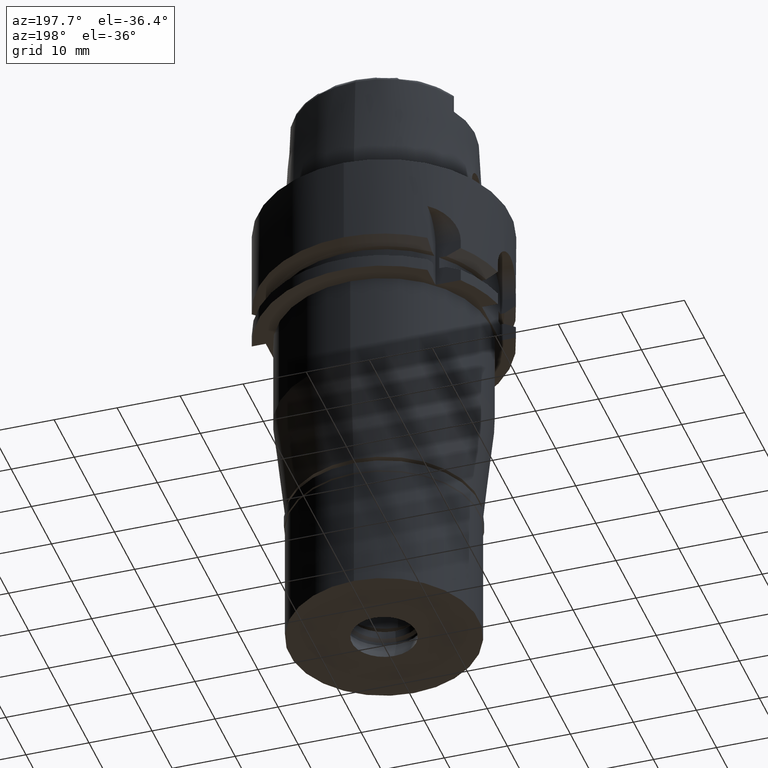
[diagram: clean part render]
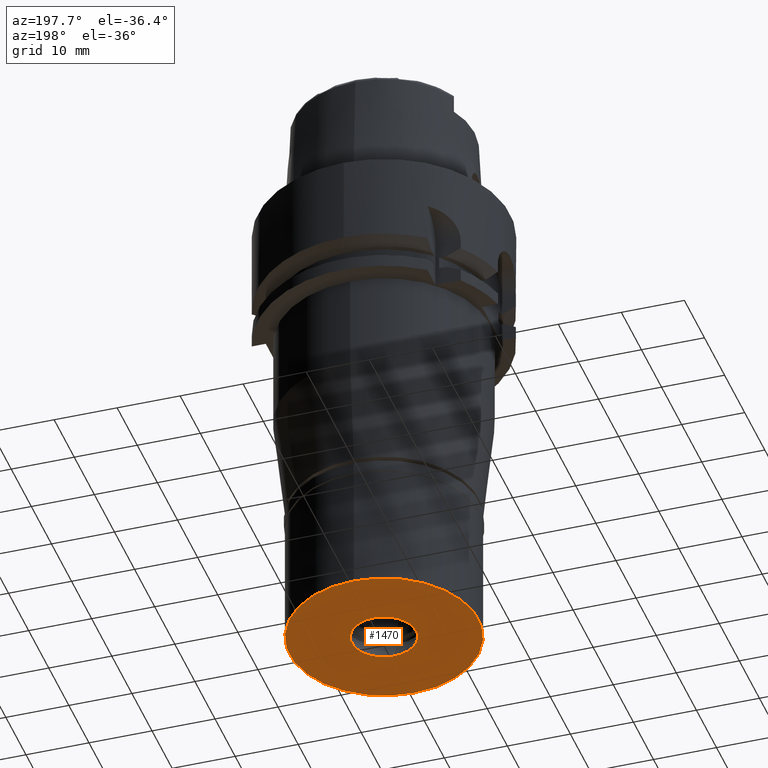
[diagram: same view with one face highlighted and labeled with its STEP entity id]
A machine part, auxiliary view. The second image highlights one B-rep face of the part: STEP entity #1470.
In plain terms, the highlighted planar face has unit normal (0, 0, -1).
Its self-contained STEP definition (entity closure, byte-faithful):
#101 = PLANE ( 'NONE',  #2681 ) ;
#125 = FACE_BOUND ( 'NONE', #3748, .T. ) ;
#152 = DIRECTION ( 'NONE',  ( 0.0000000000000000000, -1.000000000000000000, 0.0000000000000000000 ) ) ;
#685 = AXIS2_PLACEMENT_3D ( 'NONE', #4732, #2645, #2235 ) ;
#791 = DIRECTION ( 'NONE',  ( 0.0000000000000000000, 1.000000000000000000, 0.0000000000000000000 ) ) ;
#954 = AXIS2_PLACEMENT_3D ( 'NONE', #1621, #2465, #791 ) ;
#1005 = ORIENTED_EDGE ( 'NONE', *, *, #1695, .F. ) ;
#1095 = CARTESIAN_POINT ( 'NONE',  ( 0.0000000000000000000, -5.100000000001000622, -22.00000000000000000 ) ) ;
#1263 = VERTEX_POINT ( 'NONE', #3278 ) ;
#1470 = ADVANCED_FACE ( 'NONE', ( #3826, #125 ), #101, .T. ) ;
#1493 = EDGE_CURVE ( 'NONE', #5080, #5217, #3119, .T. ) ;
#1621 = CARTESIAN_POINT ( 'NONE',  ( 0.0000000000000000000, 0.0000000000000000000, -22.00000000000000000 ) ) ;
#1686 = DIRECTION ( 'NONE',  ( 0.0000000000000000000, 1.000000000000000000, 0.0000000000000000000 ) ) ;
#1695 = EDGE_CURVE ( 'NONE', #2656, #1263, #2418, .T. ) ;
#1765 = CARTESIAN_POINT ( 'NONE',  ( 0.0000000000000000000, 0.0000000000000000000, -22.00000000000000000 ) ) ;
#1987 = EDGE_CURVE ( 'NONE', #1263, #2656, #3815, .T. ) ;
#2194 = DIRECTION ( 'NONE',  ( 0.0000000000000000000, 0.0000000000000000000, -1.000000000000000000 ) ) ;
#2235 = DIRECTION ( 'NONE',  ( 0.0000000000000000000, -1.000000000000000000, 0.0000000000000000000 ) ) ;
#2418 = CIRCLE ( 'NONE', #954, 15.00000000000000000 ) ;
#2460 = ORIENTED_EDGE ( 'NONE', *, *, #1493, .F. ) ;
#2465 = DIRECTION ( 'NONE',  ( 0.0000000000000000000, 0.0000000000000000000, 1.000000000000000000 ) ) ;
#2609 = CARTESIAN_POINT ( 'NONE',  ( 0.0000000000000000000, 15.00000000000000000, -22.00000000000000000 ) ) ;
#2645 = DIRECTION ( 'NONE',  ( 0.0000000000000000000, 0.0000000000000000000, 1.000000000000000000 ) ) ;
#2648 = DIRECTION ( 'NONE',  ( 0.0000000000000000000, 0.0000000000000000000, -1.000000000000000000 ) ) ;
#2656 = VERTEX_POINT ( 'NONE', #2609 ) ;
#2681 = AXIS2_PLACEMENT_3D ( 'NONE', #1765, #2648, #3416 ) ;
#2797 = ORIENTED_EDGE ( 'NONE', *, *, #1987, .F. ) ;
#3119 = CIRCLE ( 'NONE', #3383, 5.100000000001000622 ) ;
#3168 = CARTESIAN_POINT ( 'NONE',  ( 0.0000000000000000000, 5.100000000001000622, -22.00000000000000000 ) ) ;
#3278 = CARTESIAN_POINT ( 'NONE',  ( 0.0000000000000000000, -15.00000000000000000, -22.00000000000000000 ) ) ;
#3383 = AXIS2_PLACEMENT_3D ( 'NONE', #3498, #2194, #152 ) ;
#3398 = DIRECTION ( 'NONE',  ( 0.0000000000000000000, 0.0000000000000000000, -1.000000000000000000 ) ) ;
#3415 = EDGE_LOOP ( 'NONE', ( #1005, #2797 ) ) ;
#3416 = DIRECTION ( 'NONE',  ( 0.0000000000000000000, -1.000000000000000000, 0.0000000000000000000 ) ) ;
#3498 = CARTESIAN_POINT ( 'NONE',  ( 0.0000000000000000000, 0.0000000000000000000, -22.00000000000000000 ) ) ;
#3740 = CIRCLE ( 'NONE', #5130, 5.100000000001000622 ) ;
#3748 = EDGE_LOOP ( 'NONE', ( #5000, #2460 ) ) ;
#3815 = CIRCLE ( 'NONE', #685, 15.00000000000000000 ) ;
#3826 = FACE_OUTER_BOUND ( 'NONE', #3415, .T. ) ;
#4559 = EDGE_CURVE ( 'NONE', #5217, #5080, #3740, .T. ) ;
#4636 = CARTESIAN_POINT ( 'NONE',  ( 0.0000000000000000000, 0.0000000000000000000, -22.00000000000000000 ) ) ;
#4732 = CARTESIAN_POINT ( 'NONE',  ( 0.0000000000000000000, 0.0000000000000000000, -22.00000000000000000 ) ) ;
#5000 = ORIENTED_EDGE ( 'NONE', *, *, #4559, .F. ) ;
#5080 = VERTEX_POINT ( 'NONE', #1095 ) ;
#5130 = AXIS2_PLACEMENT_3D ( 'NONE', #4636, #3398, #1686 ) ;
#5217 = VERTEX_POINT ( 'NONE', #3168 ) ;